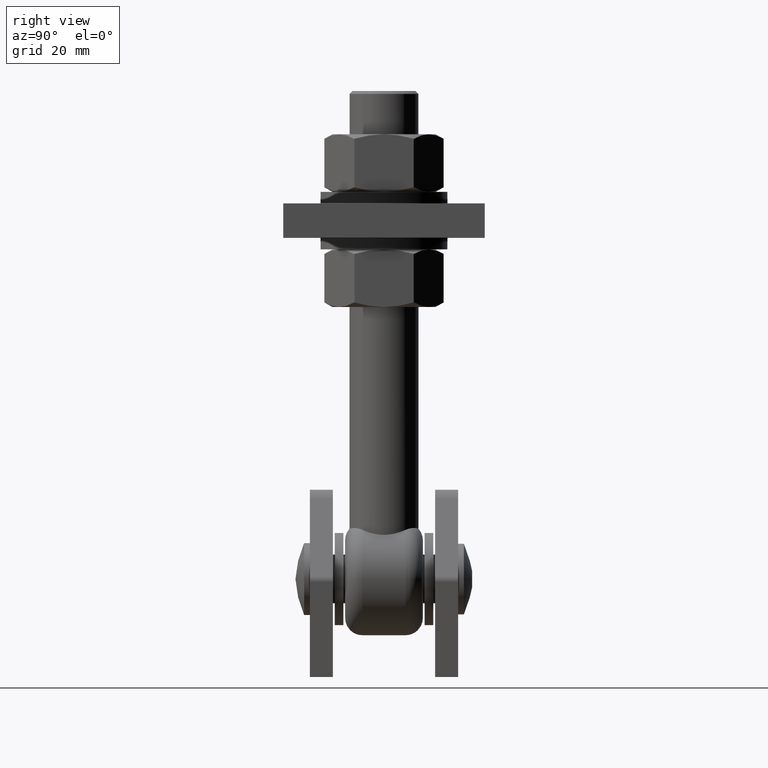
[diagram: clean part render]
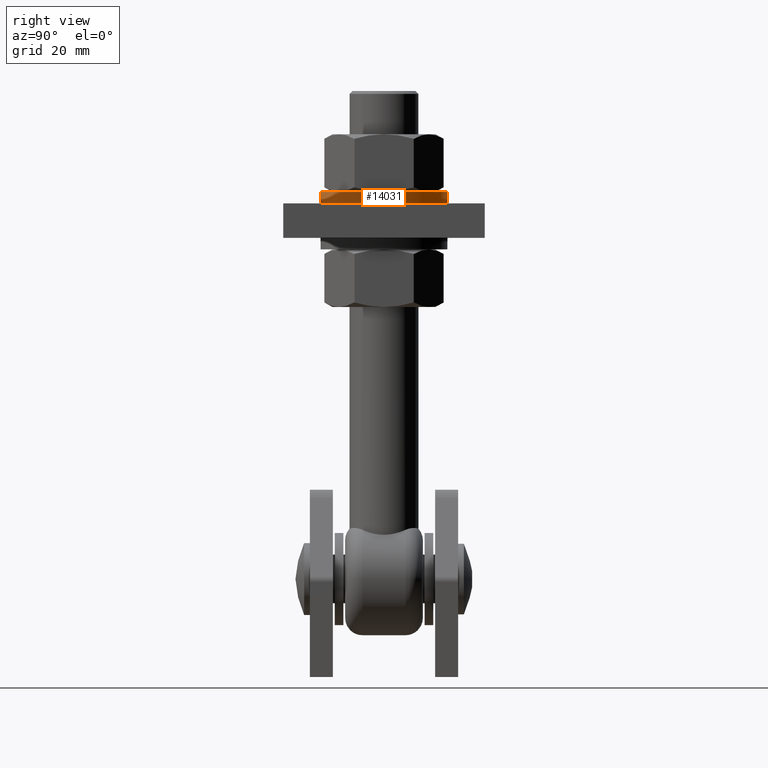
[diagram: same view with one face highlighted and labeled with its STEP entity id]
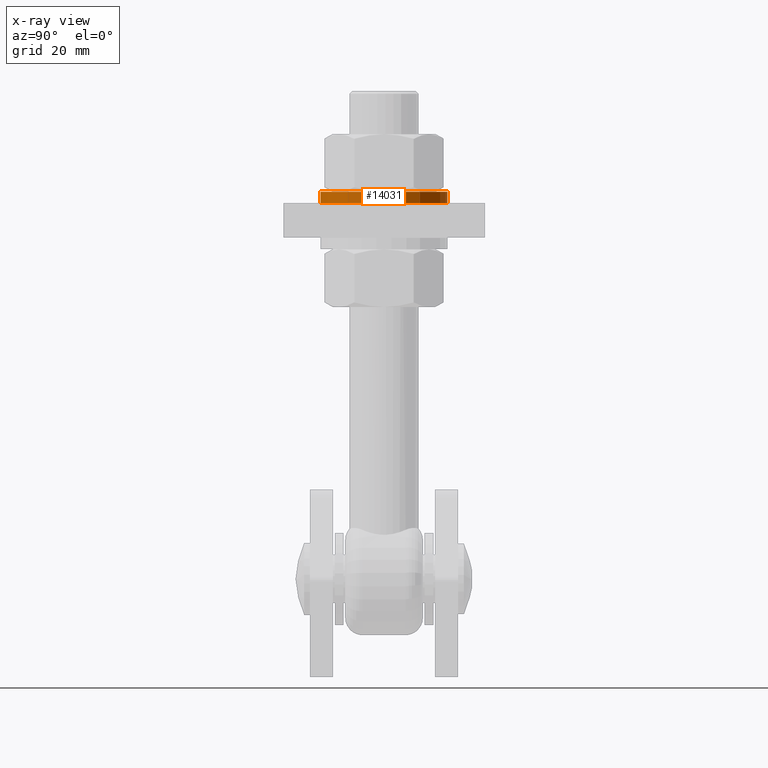
[diagram: x-ray of the same camera — body ghosted, the highlighted face saturated]
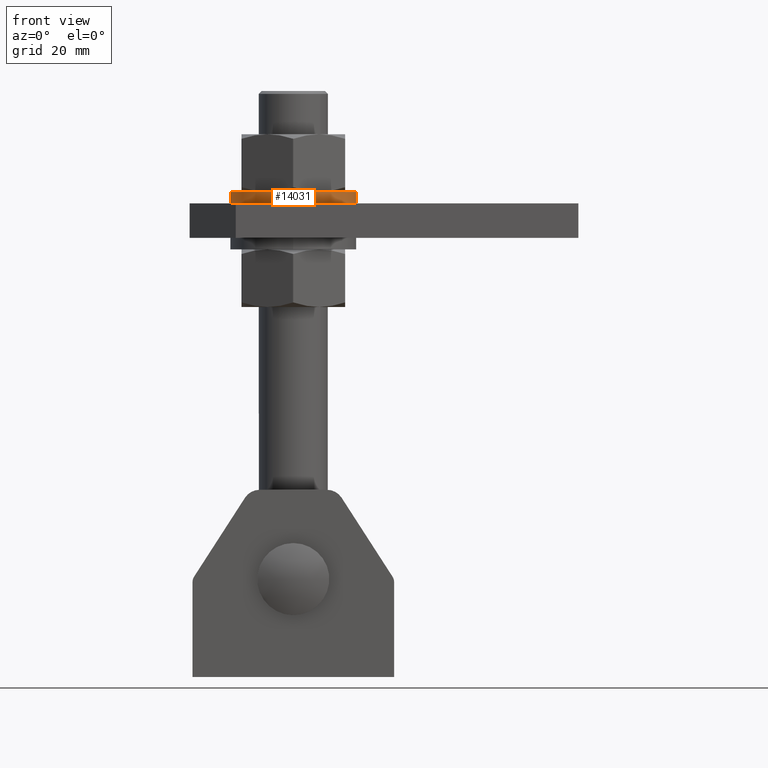
[diagram: same view with one face highlighted and labeled with its STEP entity id]
A machine part, right view. The second image highlights one B-rep face of the part: STEP entity #14031.
The next image is the same camera in x-ray: the body ghosted, the highlighted face saturated — about 0% of this face is hidden behind the body in this view.
A second angle (front view) of the same face is appended — the face is thin or edge-on in the first view.
In plain terms, the highlighted cylindrical surface (bore or boss wall) has radius 22 mm, axis along (-0, -0, -1).
Its self-contained STEP definition (entity closure, byte-faithful):
#817 = EDGE_CURVE ( 'NONE', #5458, #5458, #2507, .T. ) ;
#847 = AXIS2_PLACEMENT_3D ( 'NONE', #6624, #3300, #13818 ) ;
#1402 = ORIENTED_EDGE ( 'NONE', *, *, #3619, .F. ) ;
#1733 = AXIS2_PLACEMENT_3D ( 'NONE', #10846, #7294, #8450 ) ;
#2507 = CIRCLE ( 'NONE', #1733, 22.00000000000000000 ) ;
#3300 = DIRECTION ( 'NONE',  ( -0.000000000000000000, -1.000000000000000000, -0.000000000000000000 ) ) ;
#3477 = AXIS2_PLACEMENT_3D ( 'NONE', #4931, #9746, #3927 ) ;
#3619 = EDGE_CURVE ( 'NONE', #12708, #12708, #8797, .T. ) ;
#3927 = DIRECTION ( 'NONE',  ( 0.000000000000000000, 0.000000000000000000, 1.000000000000000000 ) ) ;
#4348 = CARTESIAN_POINT ( 'NONE',  ( 0.000000000000000000, -2.000000000000000000, 22.00000000000000000 ) ) ;
#4391 = CYLINDRICAL_SURFACE ( 'NONE', #847, 22.00000000000000000 ) ;
#4610 = EDGE_LOOP ( 'NONE', ( #1402 ) ) ;
#4931 = CARTESIAN_POINT ( 'NONE',  ( 0.000000000000000000, 2.000000000000000000, 0.000000000000000000 ) ) ;
#5458 = VERTEX_POINT ( 'NONE', #4348 ) ;
#6504 = ORIENTED_EDGE ( 'NONE', *, *, #817, .T. ) ;
#6624 = CARTESIAN_POINT ( 'NONE',  ( 0.000000000000000000, 2.000000000000000000, 0.000000000000000000 ) ) ;
#7294 = DIRECTION ( 'NONE',  ( 0.000000000000000000, 1.000000000000000000, 0.000000000000000000 ) ) ;
#7481 = FACE_OUTER_BOUND ( 'NONE', #14343, .T. ) ;
#8450 = DIRECTION ( 'NONE',  ( 0.000000000000000000, 0.000000000000000000, 1.000000000000000000 ) ) ;
#8563 = FACE_OUTER_BOUND ( 'NONE', #4610, .T. ) ;
#8797 = CIRCLE ( 'NONE', #3477, 22.00000000000000000 ) ;
#9746 = DIRECTION ( 'NONE',  ( 0.000000000000000000, 1.000000000000000000, 0.000000000000000000 ) ) ;
#10846 = CARTESIAN_POINT ( 'NONE',  ( 0.000000000000000000, -2.000000000000000000, 0.000000000000000000 ) ) ;
#12708 = VERTEX_POINT ( 'NONE', #14804 ) ;
#13818 = DIRECTION ( 'NONE',  ( 0.000000000000000000, 0.000000000000000000, -1.000000000000000000 ) ) ;
#14031 = ADVANCED_FACE ( 'NONE', ( #8563, #7481 ), #4391, .T. ) ;
#14343 = EDGE_LOOP ( 'NONE', ( #6504 ) ) ;
#14804 = CARTESIAN_POINT ( 'NONE',  ( 0.000000000000000000, 2.000000000000000000, 22.00000000000000000 ) ) ;